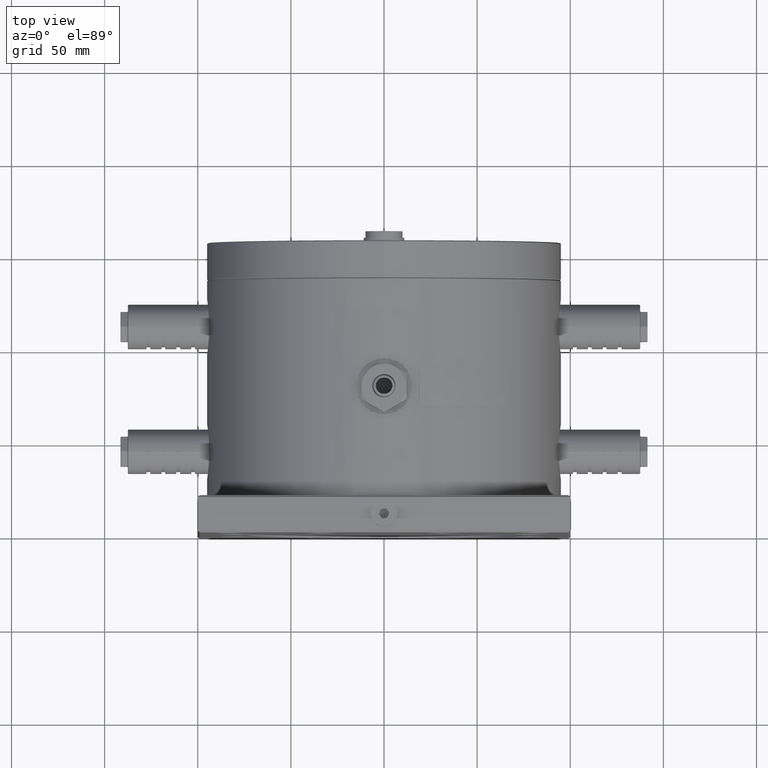
[diagram: clean part render]
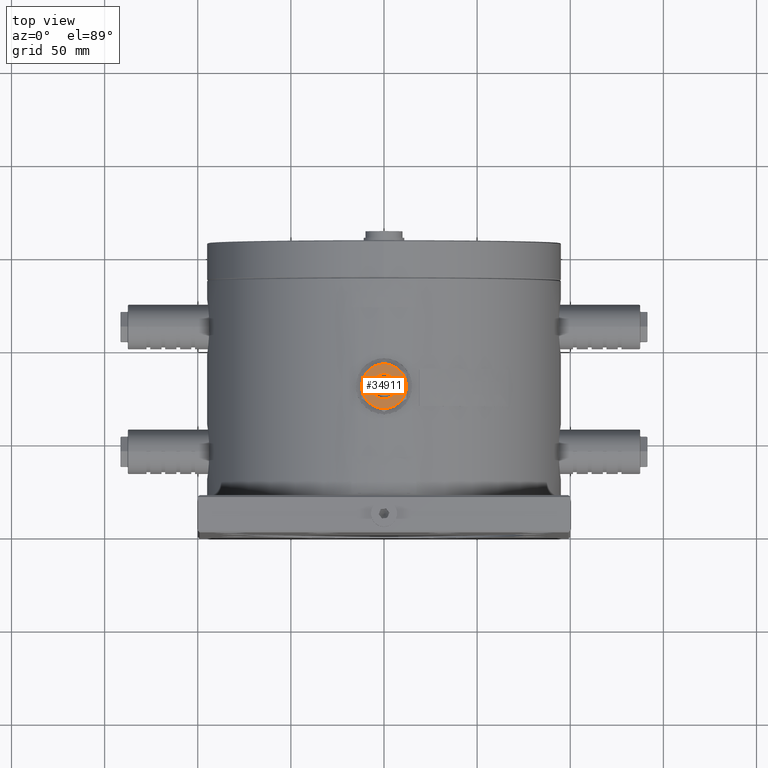
[diagram: same view with one face highlighted and labeled with its STEP entity id]
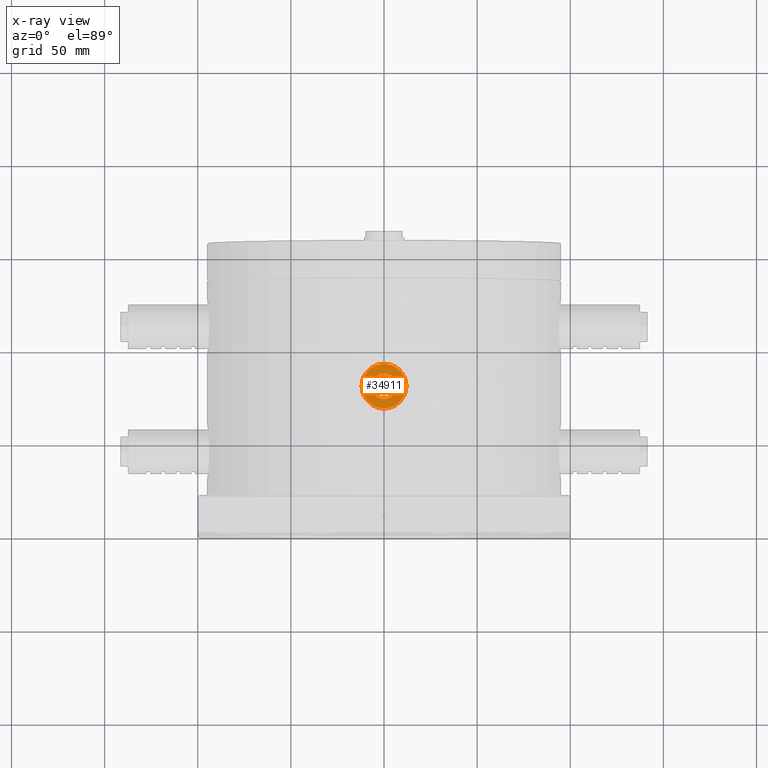
[diagram: x-ray of the same camera — body ghosted, the highlighted face saturated]
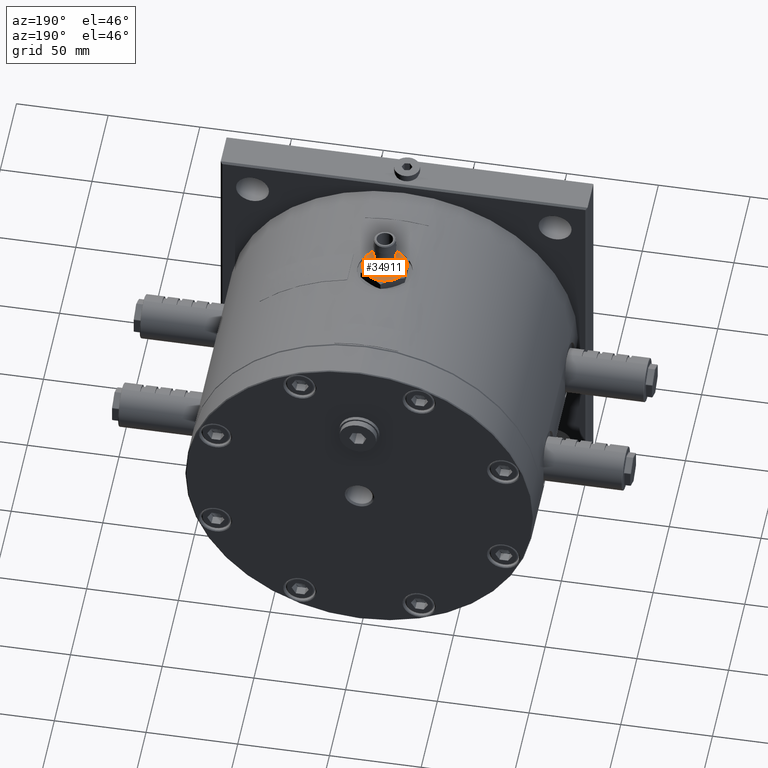
[diagram: same view with one face highlighted and labeled with its STEP entity id]
A machine part, top view. The second image highlights one B-rep face of the part: STEP entity #34911.
The next image is the same camera in x-ray: the body ghosted, the highlighted face saturated — about 0% of this face is hidden behind the body in this view.
A second angle (auxiliary view) of the same face is appended — the face is thin or edge-on in the first view.
In plain terms, the highlighted planar face has unit normal (0, 0, -1).
Its self-contained STEP definition (entity closure, byte-faithful):
#1134 = DIRECTION ( 'NONE',  ( -8.248760083363719100E-017, 8.060503086485640200E-016, -1.000000000000000000 ) ) ;
#1309 = CARTESIAN_POINT ( 'NONE',  ( -1.387778780781445900E-013, 78.50000000000000000, 98.50000000000000000 ) ) ;
#1564 = CARTESIAN_POINT ( 'NONE',  ( -1.387778780781445900E-013, 78.50000000000000000, 98.50000000000000000 ) ) ;
#1776 = DIRECTION ( 'NONE',  ( -1.000000000000000000, -2.055968564120660300E-015, 0.0000000000000000000 ) ) ;
#2123 = DIRECTION ( 'NONE',  ( -1.000000000000000000, -3.469446951953614200E-015, 0.0000000000000000000 ) ) ;
#2570 = DIRECTION ( 'NONE',  ( 8.248760083363719100E-017, -8.060503086485640200E-016, 1.000000000000000000 ) ) ;
#2589 = CIRCLE ( 'NONE', #9583, 12.00000000000000000 ) ;
#3711 = CARTESIAN_POINT ( 'NONE',  ( -6.000000000000150100, 68.10769515458679300, 98.50000000000000000 ) ) ;
#4083 = EDGE_CURVE ( 'NONE', #58267, #39906, #60975, .T. ) ;
#4534 = CARTESIAN_POINT ( 'NONE',  ( 5.999999999999800200, 88.89230484541330700, 98.50000000000000000 ) ) ;
#4787 = VERTEX_POINT ( 'NONE', #18742 ) ;
#4968 = EDGE_CURVE ( 'NONE', #7612, #21285, #2589, .T. ) ;
#5467 = CARTESIAN_POINT ( 'NONE',  ( -1.387778780781445900E-013, 78.50000000000000000, 98.50000000000000000 ) ) ;
#7612 = VERTEX_POINT ( 'NONE', #16636 ) ;
#8241 = CARTESIAN_POINT ( 'NONE',  ( -1.387778780781445900E-013, 78.50000000000000000, 98.50000000000000000 ) ) ;
#8355 = DIRECTION ( 'NONE',  ( -1.000000000000000000, -1.156482317317871300E-015, 0.0000000000000000000 ) ) ;
#8576 = PLANE ( 'NONE',  #46321 ) ;
#9583 = AXIS2_PLACEMENT_3D ( 'NONE', #1309, #11411, #40339 ) ;
#9909 = ORIENTED_EDGE ( 'NONE', *, *, #57457, .T. ) ;
#10278 = EDGE_CURVE ( 'NONE', #39906, #58267, #56932, .T. ) ;
#10438 = DIRECTION ( 'NONE',  ( 8.248760083363719100E-017, -8.060503086485640200E-016, 1.000000000000000000 ) ) ;
#10608 = CARTESIAN_POINT ( 'NONE',  ( -1.387778780781445900E-013, 78.50000000000000000, 98.50000000000000000 ) ) ;
#11411 = DIRECTION ( 'NONE',  ( 8.248760083363719100E-017, -8.060503086485640200E-016, 1.000000000000000000 ) ) ;
#11764 = CARTESIAN_POINT ( 'NONE',  ( 6.749999999999861400, 78.50000000000001400, 98.50000000000000000 ) ) ;
#12217 = DIRECTION ( 'NONE',  ( 8.248760083363719100E-017, -8.060503086485640200E-016, 1.000000000000000000 ) ) ;
#14231 = CARTESIAN_POINT ( 'NONE',  ( 5.999999999999800200, 68.10769515458690600, 98.50000000000000000 ) ) ;
#14569 = EDGE_CURVE ( 'NONE', #22805, #58872, #60713, .T. ) ;
#16087 = ORIENTED_EDGE ( 'NONE', *, *, #14569, .T. ) ;
#16156 = DIRECTION ( 'NONE',  ( -1.000000000000000000, -2.312964634635742700E-015, 0.0000000000000000000 ) ) ;
#16636 = CARTESIAN_POINT ( 'NONE',  ( 11.99999999999982100, 78.50000000000000000, 98.50000000000000000 ) ) ;
#17249 = ORIENTED_EDGE ( 'NONE', *, *, #26468, .F. ) ;
#17283 = CIRCLE ( 'NONE', #52576, 12.00000000000000000 ) ;
#17946 = AXIS2_PLACEMENT_3D ( 'NONE', #5467, #10438, #25646 ) ;
#18114 = DIRECTION ( 'NONE',  ( -1.000000000000000000, -2.055968564120660300E-015, 0.0000000000000000000 ) ) ;
#18700 = CARTESIAN_POINT ( 'NONE',  ( -6.750000000000138600, 78.49999999999998600, 98.50000000000000000 ) ) ;
#18742 = CARTESIAN_POINT ( 'NONE',  ( -6.000000000000209600, 88.89230484541330700, 98.50000000000000000 ) ) ;
#19475 = ORIENTED_EDGE ( 'NONE', *, *, #10278, .T. ) ;
#20447 = DIRECTION ( 'NONE',  ( 8.248760083363719100E-017, -8.060503086485640200E-016, 1.000000000000000000 ) ) ;
#21285 = VERTEX_POINT ( 'NONE', #4534 ) ;
#21313 = DIRECTION ( 'NONE',  ( -8.248760083363719100E-017, 8.060503086485640200E-016, -1.000000000000000000 ) ) ;
#21469 = EDGE_LOOP ( 'NONE', ( #17249, #40005, #16087, #9909, #61500, #62987 ) ) ;
#22258 = AXIS2_PLACEMENT_3D ( 'NONE', #1564, #21313, #1776 ) ;
#22328 = CARTESIAN_POINT ( 'NONE',  ( -1.875475044000669700E-013, 92.35640646055109900, 98.50000000000000000 ) ) ;
#22805 = VERTEX_POINT ( 'NONE', #3711 ) ;
#23379 = CIRCLE ( 'NONE', #36140, 12.00000000000000000 ) ;
#23893 = CIRCLE ( 'NONE', #17946, 12.00000000000000000 ) ;
#25602 = DIRECTION ( 'NONE',  ( -1.000000000000000000, -2.312964634635742700E-015, 0.0000000000000000000 ) ) ;
#25646 = DIRECTION ( 'NONE',  ( -1.000000000000000000, -2.312964634635742700E-015, 0.0000000000000000000 ) ) ;
#25813 = VERTEX_POINT ( 'NONE', #63206 ) ;
#25951 = CARTESIAN_POINT ( 'NONE',  ( -1.387778780781445900E-013, 78.50000000000000000, 98.50000000000000000 ) ) ;
#26468 = EDGE_CURVE ( 'NONE', #25813, #4787, #45134, .T. ) ;
#28235 = FACE_BOUND ( 'NONE', #53226, .T. ) ;
#29783 = FACE_OUTER_BOUND ( 'NONE', #21469, .T. ) ;
#32150 = DIRECTION ( 'NONE',  ( -1.000000000000000000, -2.651134401800485200E-015, -6.211259614778559200E-017 ) ) ;
#32369 = DIRECTION ( 'NONE',  ( 6.211259614778346000E-017, 8.060503086485644200E-016, -1.000000000000000000 ) ) ;
#34911 = ADVANCED_FACE ( 'NONE', ( #28235, #29783 ), #8576, .F. ) ;
#35650 = CARTESIAN_POINT ( 'NONE',  ( -1.387778780781445900E-013, 78.50000000000000000, 98.50000000000000000 ) ) ;
#36140 = AXIS2_PLACEMENT_3D ( 'NONE', #56552, #2570, #8355 ) ;
#36892 = AXIS2_PLACEMENT_3D ( 'NONE', #8241, #47442, #18114 ) ;
#39906 = VERTEX_POINT ( 'NONE', #18700 ) ;
#40005 = ORIENTED_EDGE ( 'NONE', *, *, #42763, .T. ) ;
#40339 = DIRECTION ( 'NONE',  ( -1.000000000000000000, -2.312964634635742700E-015, 0.0000000000000000000 ) ) ;
#42763 = EDGE_CURVE ( 'NONE', #25813, #22805, #23893, .T. ) ;
#44018 = AXIS2_PLACEMENT_3D ( 'NONE', #10608, #20447, #16156 ) ;
#45134 = CIRCLE ( 'NONE', #52304, 12.00000000000000000 ) ;
#46070 = ORIENTED_EDGE ( 'NONE', *, *, #4083, .T. ) ;
#46321 = AXIS2_PLACEMENT_3D ( 'NONE', #22328, #32369, #32150 ) ;
#47442 = DIRECTION ( 'NONE',  ( -8.248760083363719100E-017, 8.060503086485640200E-016, -1.000000000000000000 ) ) ;
#52304 = AXIS2_PLACEMENT_3D ( 'NONE', #35650, #1134, #25602 ) ;
#52576 = AXIS2_PLACEMENT_3D ( 'NONE', #25951, #12217, #2123 ) ;
#53226 = EDGE_LOOP ( 'NONE', ( #19475, #46070 ) ) ;
#56552 = CARTESIAN_POINT ( 'NONE',  ( -1.387778780781445900E-013, 78.50000000000000000, 98.50000000000000000 ) ) ;
#56932 = CIRCLE ( 'NONE', #36892, 6.750000000000000000 ) ;
#57187 = EDGE_CURVE ( 'NONE', #21285, #4787, #17283, .T. ) ;
#57457 = EDGE_CURVE ( 'NONE', #58872, #7612, #23379, .T. ) ;
#58267 = VERTEX_POINT ( 'NONE', #11764 ) ;
#58872 = VERTEX_POINT ( 'NONE', #14231 ) ;
#60713 = CIRCLE ( 'NONE', #44018, 12.00000000000000000 ) ;
#60975 = CIRCLE ( 'NONE', #22258, 6.750000000000000000 ) ;
#61500 = ORIENTED_EDGE ( 'NONE', *, *, #4968, .T. ) ;
#62987 = ORIENTED_EDGE ( 'NONE', *, *, #57187, .T. ) ;
#63206 = CARTESIAN_POINT ( 'NONE',  ( -12.00000000000014000, 78.50000000000000000, 98.50000000000000000 ) ) ;